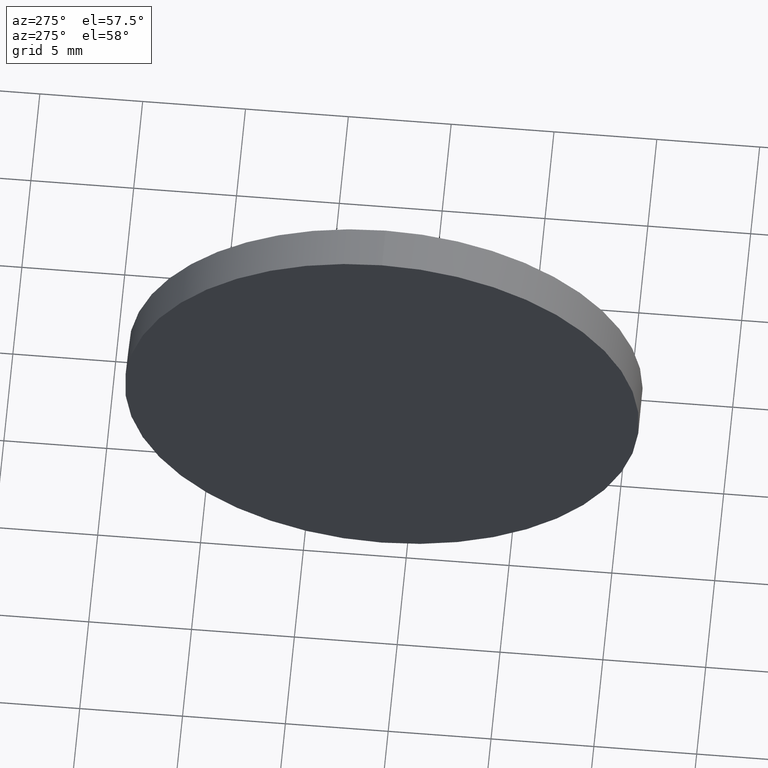
[diagram: clean part render]
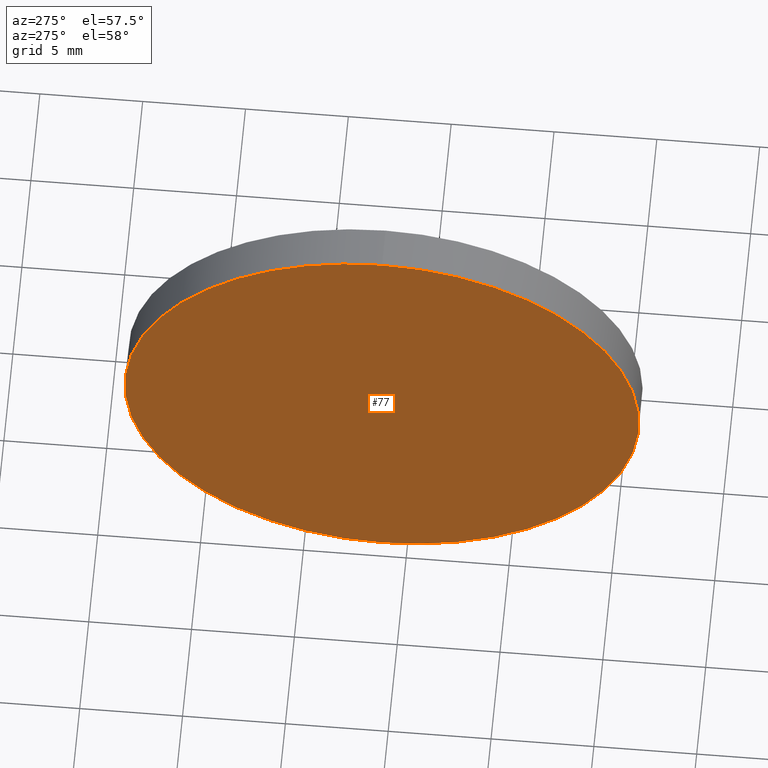
[diagram: same view with one face highlighted and labeled with its STEP entity id]
A machine part, auxiliary view. The second image highlights one B-rep face of the part: STEP entity #77.
In plain terms, the highlighted planar face has unit normal (1, 0, 0).
Its self-contained STEP definition (entity closure, byte-faithful):
#21 = EDGE_CURVE ( 'NONE', #47, #127, #115, .T. ) ;
#23 = ORIENTED_EDGE ( 'NONE', *, *, #21, .T. ) ;
#47 = VERTEX_POINT ( 'NONE', #111 ) ;
#53 = FACE_OUTER_BOUND ( 'NONE', #174, .T. ) ;
#60 = CARTESIAN_POINT ( 'NONE',  ( 475.4325426898954600, 56.21778746480561000, 0.0000000000000000000 ) ) ;
#64 = AXIS2_PLACEMENT_3D ( 'NONE', #160, #147, #81 ) ;
#69 = DIRECTION ( 'NONE',  ( 0.0000000000000000000, 0.0000000000000000000, 1.000000000000000000 ) ) ;
#77 = ADVANCED_FACE ( 'NONE', ( #53 ), #162, .F. ) ;
#79 = AXIS2_PLACEMENT_3D ( 'NONE', #60, #163, #148 ) ;
#81 = DIRECTION ( 'NONE',  ( 0.0000000000000000000, 0.0000000000000000000, 1.000000000000000000 ) ) ;
#93 = EDGE_CURVE ( 'NONE', #127, #47, #109, .T. ) ;
#109 = CIRCLE ( 'NONE', #64, 12.50000000000000400 ) ;
#111 = CARTESIAN_POINT ( 'NONE',  ( 475.4325426898954600, 56.21778746480561000, 12.50000000000000400 ) ) ;
#115 = CIRCLE ( 'NONE', #161, 12.50000000000000400 ) ;
#127 = VERTEX_POINT ( 'NONE', #132 ) ;
#132 = CARTESIAN_POINT ( 'NONE',  ( 475.4325426898954600, 56.21778746480561000, -12.50000000000000400 ) ) ;
#136 = DIRECTION ( 'NONE',  ( -1.000000000000000000, -0.0000000000000000000, -0.0000000000000000000 ) ) ;
#147 = DIRECTION ( 'NONE',  ( -1.000000000000000000, -0.0000000000000000000, -0.0000000000000000000 ) ) ;
#148 = DIRECTION ( 'NONE',  ( 0.0000000000000000000, 0.0000000000000000000, -1.000000000000000000 ) ) ;
#160 = CARTESIAN_POINT ( 'NONE',  ( 475.4325426898954600, 56.21778746480561000, 0.0000000000000000000 ) ) ;
#161 = AXIS2_PLACEMENT_3D ( 'NONE', #181, #136, #69 ) ;
#162 = PLANE ( 'NONE',  #79 ) ;
#163 = DIRECTION ( 'NONE',  ( 1.000000000000000000, 0.0000000000000000000, 0.0000000000000000000 ) ) ;
#165 = ORIENTED_EDGE ( 'NONE', *, *, #93, .T. ) ;
#174 = EDGE_LOOP ( 'NONE', ( #23, #165 ) ) ;
#181 = CARTESIAN_POINT ( 'NONE',  ( 475.4325426898954600, 56.21778746480561000, 0.0000000000000000000 ) ) ;